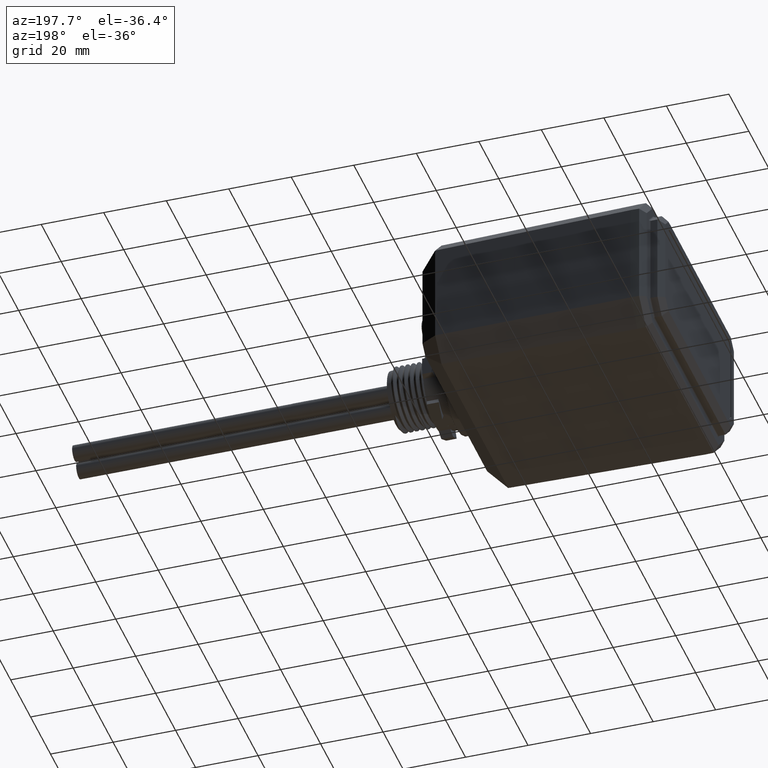
[diagram: clean part render]
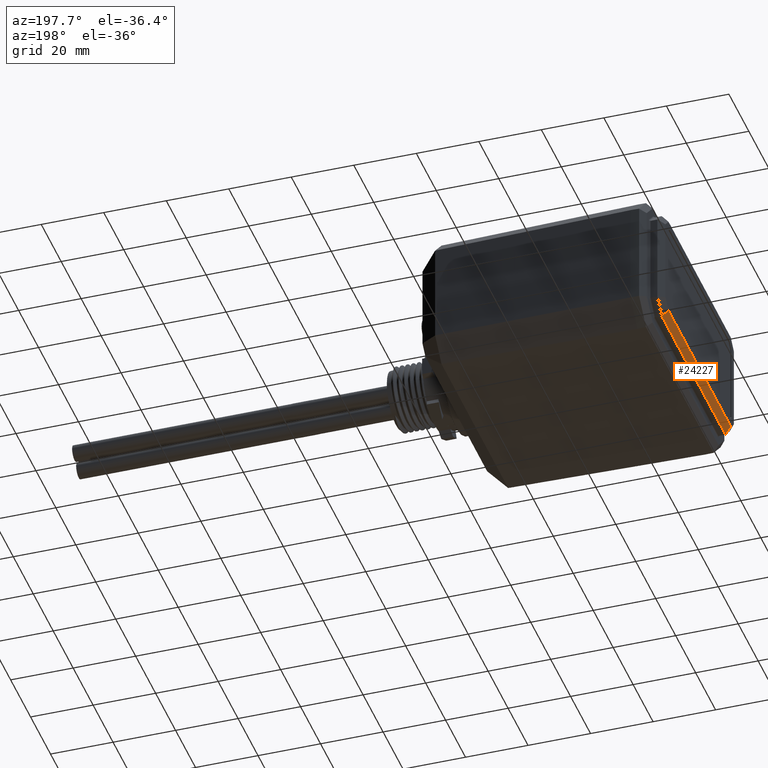
[diagram: same view with one face highlighted and labeled with its STEP entity id]
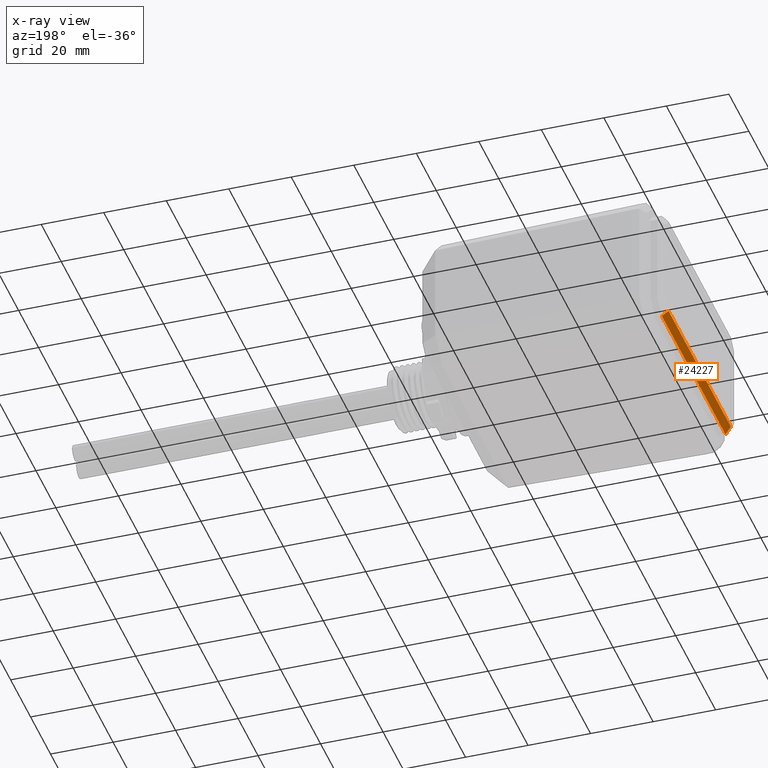
[diagram: x-ray of the same camera — body ghosted, the highlighted face saturated]
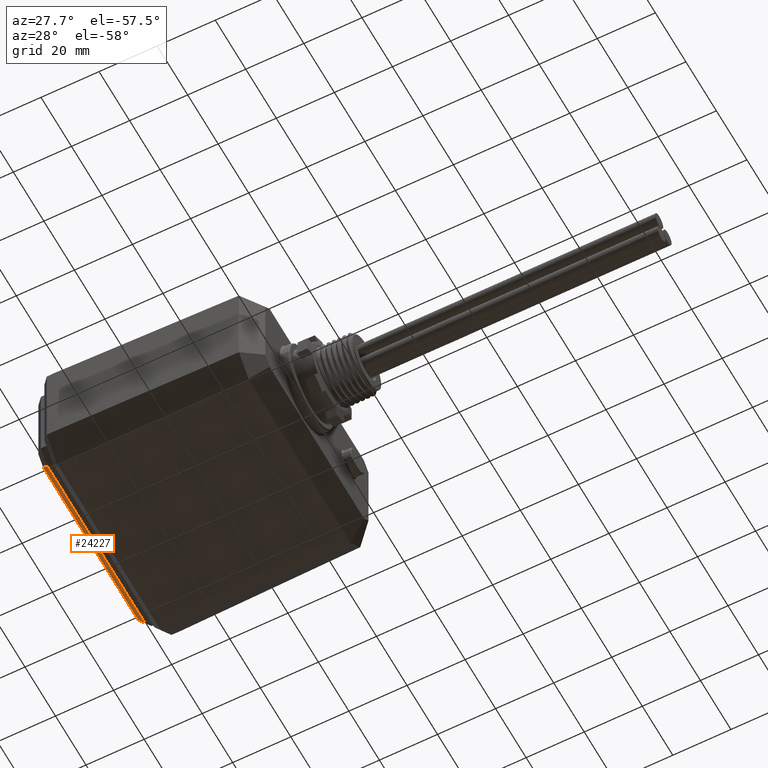
[diagram: same view with one face highlighted and labeled with its STEP entity id]
A machine part, auxiliary view. The second image highlights one B-rep face of the part: STEP entity #24227.
The next image is the same camera in x-ray: the body ghosted, the highlighted face saturated — about 0% of this face is hidden behind the body in this view.
A second angle (auxiliary view) of the same face is appended — the face is thin or edge-on in the first view.
In plain terms, the highlighted planar face has unit normal (0.7193, 0, 0.6947).
Its self-contained STEP definition (entity closure, byte-faithful):
#3207 = ORIENTED_EDGE ( 'NONE', *, *, #30948, .T. ) ;
#3976 = VERTEX_POINT ( 'NONE', #4462 ) ;
#4462 = CARTESIAN_POINT ( 'NONE',  ( -2.540225151094943600, 2.623145266193670300, -2.841590070856114400 ) ) ;
#4657 = LINE ( 'NONE', #18913, #12986 ) ;
#5271 = ORIENTED_EDGE ( 'NONE', *, *, #12813, .T. ) ;
#5622 = AXIS2_PLACEMENT_3D ( 'NONE', #17867, #23321, #30520 ) ;
#5897 = DIRECTION ( 'NONE',  ( 1.186949707588915400E-016, -1.000000000000000000, 2.051927251632536000E-016 ) ) ;
#7059 = CARTESIAN_POINT ( 'NONE',  ( -2.464087206771117300, 0.1366113836938673800, -2.920433220233133100 ) ) ;
#7371 = DIRECTION ( 'NONE',  ( 0.6657346136289221700, 0.2855540139848915000, -0.6893883733523985500 ) ) ;
#8981 = CARTESIAN_POINT ( 'NONE',  ( -2.464656839299264500, 2.655558835086673700, -2.919843348482517300 ) ) ;
#11465 = VERTEX_POINT ( 'NONE', #23175 ) ;
#11741 = DIRECTION ( 'NONE',  ( 0.6657346136289222800, -0.2855540139848916600, -0.6893883733523984400 ) ) ;
#12813 = EDGE_CURVE ( 'NONE', #3976, #21868, #17866, .T. ) ;
#12986 = VECTOR ( 'NONE', #11741, 39.37007874015748100 ) ;
#15170 = LINE ( 'NONE', #25528, #15178 ) ;
#15178 = VECTOR ( 'NONE', #24894, 39.37007874015748100 ) ;
#17866 = LINE ( 'NONE', #8981, #18514 ) ;
#17867 = CARTESIAN_POINT ( 'NONE',  ( -2.540225151094942700, 1.396207275829853800, -2.841590070856114400 ) ) ;
#18463 = EDGE_LOOP ( 'NONE', ( #5271, #3207, #29242, #18952 ) ) ;
#18514 = VECTOR ( 'NONE', #7371, 39.37007874015748900 ) ;
#18913 = CARTESIAN_POINT ( 'NONE',  ( -2.773469978431326100, 0.2693151525782467300, -2.600057981614443100 ) ) ;
#18952 = ORIENTED_EDGE ( 'NONE', *, *, #32762, .F. ) ;
#21868 = VERTEX_POINT ( 'NONE', #26073 ) ;
#23175 = CARTESIAN_POINT ( 'NONE',  ( -2.540225151094942700, 0.1692692854660372800, -2.841590070856113900 ) ) ;
#23321 = DIRECTION ( 'NONE',  ( 0.7193398003386497500, 2.279208606588498300E-016, 0.6946583704589987000 ) ) ;
#23511 = VECTOR ( 'NONE', #5897, 39.37007874015748100 ) ;
#23741 = CARTESIAN_POINT ( 'NONE',  ( -2.540225151094942700, 0.06386019832730313600, -2.841590070856113900 ) ) ;
#24227 = ADVANCED_FACE ( 'NONE', ( #28427 ), #27580, .F. ) ;
#24894 = DIRECTION ( 'NONE',  ( 6.633462728620887300E-017, -1.000000000000000000, 2.594134480697024600E-016 ) ) ;
#25528 = CARTESIAN_POINT ( 'NONE',  ( -2.464087206771117700, 1.396207275829853800, -2.920433220233133600 ) ) ;
#26073 = CARTESIAN_POINT ( 'NONE',  ( -2.464087206771118600, 2.655803167965840000, -2.920433220233133600 ) ) ;
#27580 = PLANE ( 'NONE',  #5622 ) ;
#28427 = FACE_OUTER_BOUND ( 'NONE', #18463, .T. ) ;
#29242 = ORIENTED_EDGE ( 'NONE', *, *, #32554, .F. ) ;
#30187 = VERTEX_POINT ( 'NONE', #7059 ) ;
#30520 = DIRECTION ( 'NONE',  ( 1.186949707588915400E-016, -1.000000000000000000, 2.051927251632536000E-016 ) ) ;
#30948 = EDGE_CURVE ( 'NONE', #21868, #30187, #15170, .T. ) ;
#31335 = LINE ( 'NONE', #23741, #23511 ) ;
#32554 = EDGE_CURVE ( 'NONE', #11465, #30187, #4657, .T. ) ;
#32762 = EDGE_CURVE ( 'NONE', #3976, #11465, #31335, .T. ) ;